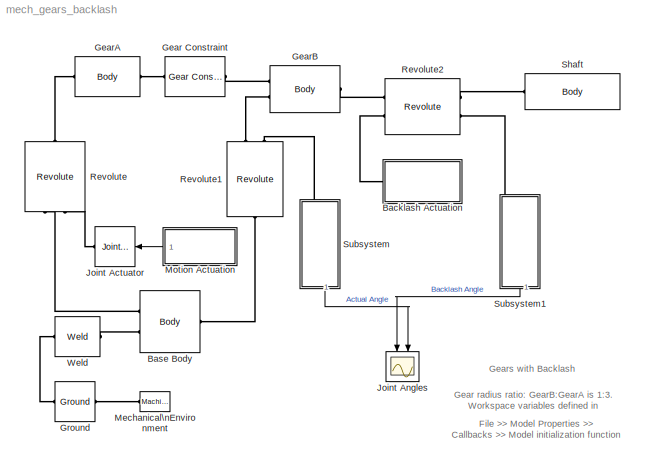
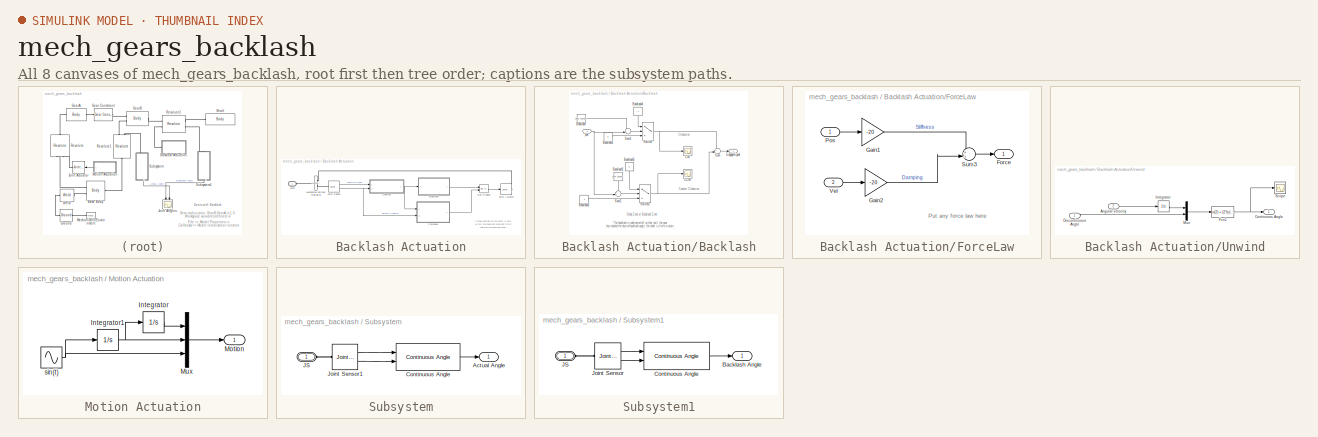
[diagram: thumbnail index - all 8 canvases of the model, root first then tree order]
MODEL mech_gears_backlash
KIND model
CONFIG InitFcn = gear.backlashCW=0.2;\ngear.backlashCCW=0.2;
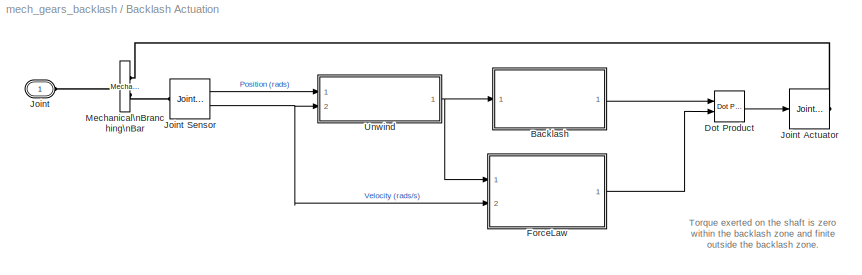
BLOCK [SubSystem] Backlash Actuation
  FunctionWithSeparateData = off
  MaskHideContents = off
  MinAlgLoopOccurrences = off
  Opaque = off
  Ports = [0, 0, 0, 0, 0, 1]
  PropExecContextOutsideSubsystem = off
  RTWSystemCode = Auto
  RequestExecContextInheritance = off
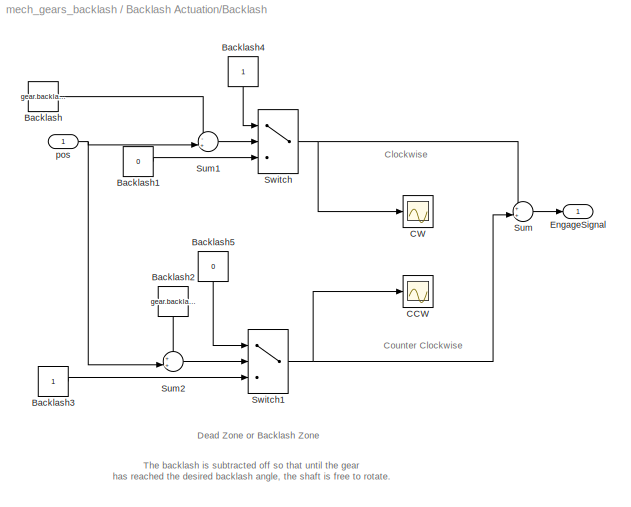
BLOCK [SubSystem] Backlash Actuation/Backlash
  FunctionWithSeparateData = off
  MaskHideContents = off
  MinAlgLoopOccurrences = off
  Opaque = off
  Ports = [1, 1]
  PropExecContextOutsideSubsystem = off
  RTWSystemCode = Auto
  RequestExecContextInheritance = off
BLOCK [Constant] Backlash Actuation/Backlash/Backlash
  OutDataType = sfix(16)
  OutScaling = 2^0
  Value = gear.backlashCW
BLOCK [Constant] Backlash Actuation/Backlash/Backlash1
  OutDataType = sfix(16)
  OutScaling = 2^0
  Value = 0
BLOCK [Constant] Backlash Actuation/Backlash/Backlash2
  OutDataType = sfix(16)
  OutScaling = 2^0
  Value = gear.backlashCCW
BLOCK [Constant] Backlash Actuation/Backlash/Backlash3
  OutDataType = sfix(16)
  OutScaling = 2^0
BLOCK [Constant] Backlash Actuation/Backlash/Backlash4
  OutDataType = sfix(16)
  OutScaling = 2^0
BLOCK [Constant] Backlash Actuation/Backlash/Backlash5
  OutDataType = sfix(16)
  OutScaling = 2^0
  Value = 0
BLOCK [Scope] Backlash Actuation/Backlash/CCW
  DataFormat = StructureWithTime
  Floating = off
  NumInputPorts = 1
  Ports = [1]
  SampleTime = 0
  SaveName = ScopeData4
  TimeRange = 5
  YMax = 2.5
  YMin = -4
BLOCK [Scope] Backlash Actuation/Backlash/CW
  DataFormat = StructureWithTime
  Floating = off
  NumInputPorts = 1
  Ports = [1]
  SampleTime = 0
  SaveName = ScopeData1
  TimeRange = 5
  YMax = 1
  YMin = 0
BLOCK [Outport] Backlash Actuation/Backlash/EngageSignal
  IconDisplay = Port number
  OutDataType = sfix(16)
  OutScaling = 2^0
BLOCK [Sum] Backlash Actuation/Backlash/Sum
  IconShape = round
  InputSameDT = off
  Inputs = ++|
  OutDataType = sfix(16)
  OutDataTypeMode = Inherit via internal rule
  OutDataTypeStr = Inherit: Inherit via internal rule
  OutScaling = 2^0
  Ports = [2, 1]
BLOCK [Sum] Backlash Actuation/Backlash/Sum1
  IconShape = round
  InputSameDT = off
  Inputs = -+|
  OutDataType = sfix(16)
  OutDataTypeMode = Inherit via internal rule
  OutDataTypeStr = Inherit: Inherit via internal rule
  OutScaling = 2^0
  Ports = [2, 1]
BLOCK [Sum] Backlash Actuation/Backlash/Sum2
  IconShape = round
  InputSameDT = off
  Inputs = ++|
  OutDataType = sfix(16)
  OutDataTypeMode = Inherit via internal rule
  OutDataTypeStr = Inherit: Inherit via internal rule
  OutScaling = 2^0
  Ports = [2, 1]
BLOCK [Switch] Backlash Actuation/Backlash/Switch
  Criteria = u2 > Threshold
  InputSameDT = off
  SaturateOnIntegerOverflow = off
BLOCK [Switch] Backlash Actuation/Backlash/Switch1
  Criteria = u2 > Threshold
  InputSameDT = off
  SaturateOnIntegerOverflow = off
BLOCK [Inport] Backlash Actuation/Backlash/pos
  IconDisplay = Port number
  OutDataType = sfix(16)
  OutScaling = 2^0
BLOCK [Reference] Backlash Actuation/Dot Product  REF=simulink/Math\nOperations/Dot Product
  DoSatur = off
  InputSameDT = on
  LockScale = off
  OutDataType = sfix(16)
  OutDataTypeStr = Inherit: Inherit via internal rule
  OutScaling = 2^-10
  OutputDataTypeScalingMode = Inherit via internal rule
  Ports = [2, 1]
  RndMeth = Floor
  SourceBlock = simulink/Math\nOperations/Dot Product
  SourceType = Dot Product
BLOCK [SubSystem] Backlash Actuation/ForceLaw
  FunctionWithSeparateData = off
  MaskHideContents = off
  MinAlgLoopOccurrences = off
  Opaque = off
  Ports = [2, 1]
  PropExecContextOutsideSubsystem = off
  RTWSystemCode = Auto
  RequestExecContextInheritance = off
BLOCK [Outport] Backlash Actuation/ForceLaw/Force
  IconDisplay = Port number
  OutDataType = sfix(16)
  OutScaling = 2^0
BLOCK [Gain] Backlash Actuation/ForceLaw/Gain1
  Gain = -20
  Multiplication = Matrix(K*u)
  OutDataType = sfix(16)
  OutScaling = 2^0
  ParameterDataType = sfix(16)
  ParameterScaling = 2^0
BLOCK [Gain] Backlash Actuation/ForceLaw/Gain2
  Gain = -20
  Multiplication = Matrix(K*u)
  OutDataType = sfix(16)
  OutScaling = 2^0
  ParameterDataType = sfix(16)
  ParameterScaling = 2^0
BLOCK [Inport] Backlash Actuation/ForceLaw/Pos
  IconDisplay = Port number
  OutDataType = sfix(16)
  OutScaling = 2^0
BLOCK [Sum] Backlash Actuation/ForceLaw/Sum3
  IconShape = round
  InputSameDT = off
  Inputs = ++|
  OutDataType = sfix(16)
  OutDataTypeMode = Inherit via internal rule
  OutDataTypeStr = Inherit: Inherit via internal rule
  OutScaling = 2^0
  Ports = [2, 1]
BLOCK [Inport] Backlash Actuation/ForceLaw/Vel
  IconDisplay = Port number
  OutDataType = sfix(16)
  OutScaling = 2^0
  Port = 2
BLOCK [PMIOPort] Backlash Actuation/Joint
  Port = 1
  Side = Left
  Tag = PMCPort
BLOCK [Reference] Backlash Actuation/Joint Actuator  REF=mblibv1/Sensors & \nActuators/Joint Actuator
  AccelerationUnits = m/s^2
  ActiveIO = on
  ActuationStyle = Force
  AngleUnits = deg
  ArcAccelerationUnits = deg/s^2
  ArcVelocityUnits = deg/s
  ClassName = JointActuator
  CoordPositionUnits = m
  DialogClass = MechanicalActuatorBlock
  DialogController = MECH.DynMechDlgSource
  ForceUnits = N
  FunctionWithSeparateData = off
  PhysicalDomain = Mechanical
  PortType = blob
  Ports = [1, 0, 0, 0, 0, 0, 1]
  Primitive = R1
  RTWMemSecDataConstants = Inherit from model
  RTWMemSecDataInternal = Inherit from model
  RTWMemSecDataParameters = Inherit from model
  RTWMemSecFuncExecute = Inherit from model
  RTWMemSecFuncInitTerm = Inherit from model
  ReferenceFrame = Absolute (INERTIAL)
  ShowPortLabels = FromPortIcon
  SourceBlock = mblibv1/Sensors & \nActuators/Joint Actuator
  SourceType = Joint Actuator
  SystemSampleTime = -1
  TorqueUnits = N-m
  VelocityUnits = m/s
  Width = 1
BLOCK [Reference] Backlash Actuation/Joint Sensor  REF=mblibv1/Sensors & \nActuators/Joint Sensor
  Acceleration = off
  AccelerationUnits = m/s^2
  ActiveIO = on
  Angle = on
  AngleUnits = rad
  ArcAcceleration = off
  ArcAccelerationUnits = deg/s^2
  ArcVelocity = on
  ArcVelocityUnits = rad/s
  ClassName = JointSensor
  CoordPosition = off
  CoordPositionUnits = m
  DialogClass = MechanicalSensorBlock
  DialogController = MECH.DynMechDlgSource
  Force = off
  ForceUnits = N
  FunctionWithSeparateData = off
  Muxed = off
  OutputVector = [ 1 1 ]
  PhysicalDomain = Mechanical
  PortType = blob
  Ports = [0, 2, 0, 0, 0, 1]
  Pose = off
  Primitive = R1
  Quaternion = off
  QuaternionDDT = off
  QuaternionDT = off
  QuaternionUnits = off
  RTWMemSecDataConstants = Inherit from model
  RTWMemSecDataInternal = Inherit from model
  RTWMemSecDataParameters = Inherit from model
  RTWMemSecFuncExecute = Inherit from model
  RTWMemSecFuncInitTerm = Inherit from model
  ReactionForce = off
  ReactionForceUnits = N
  ReactionMoment = off
  ReactionMomentUnits = N-m
  ReactionReferenceFrame = Absolute (World)
  ReactionSensedSide = Base
  ReferenceFrame = Absolute (INERTIAL)
  ShowPortLabels = FromPortIcon
  SourceBlock = mblibv1/Sensors & \nActuators/Joint Sensor
  SourceType = Joint Sensor
  SystemSampleTime = -1
  Torque = off
  TorqueUnits = N-m
  Velocity = off
  VelocityUnits = m/s
  Width = 2
BLOCK [Reference] Backlash Actuation/Mechanical\nBranching\nBar  REF=mblibv1/Utilities/Mechanical\nBranching\nBar
  ClassName = BranchingBar
  DialogClass = MechanicalBranchingBarBlock
  DialogController = MECH.DynMechDlgSource
  LConnTagsString = _newl0
  LeftPortType = blob
  NumSAPorts = 2
  PhysicalDomain = mechanical
  Ports = [0, 0, 0, 0, 0, 1, 2]
  RConnTagsString = SA0|SA1
  RightPortType = blob
  SourceBlock = mblibv1/Utilities/Mechanical\nBranching\nBar
  SourceType = Mechanical Branching Bar
  SubClassName = Unknown
BLOCK [SubSystem] Backlash Actuation/Unwind
  FunctionWithSeparateData = off
  MaskHideContents = off
  MinAlgLoopOccurrences = off
  Opaque = off
  Ports = [2, 1]
  PropExecContextOutsideSubsystem = off
  RTWSystemCode = Auto
  RequestExecContextInheritance = off
BLOCK [Inport] Backlash Actuation/Unwind/Angular velocity
  IconDisplay = Port number
  OutDataType = sfix(16)
  OutScaling = 2^0
  Port = 2
BLOCK [Outport] Backlash Actuation/Unwind/Continuous Angle
  IconDisplay = Port number
  OutDataType = sfix(16)
  OutScaling = 2^0
BLOCK [Inport] Backlash Actuation/Unwind/Discontinuous Angle
  IconDisplay = Port number
  OutDataType = sfix(16)
  OutScaling = 2^0
BLOCK [Fcn] Backlash Actuation/Unwind/Fcn1
  Expr = u(2) + (2*(u(1) > u(2)) - 1)*2*pi*floor(abs(u(1)-u(2))/(2*pi) + 0.5)
BLOCK [Integrator] Backlash Actuation/Unwind/Integrator
  AbsoluteTolerance = 1e-3
  Ports = [1, 1]
BLOCK [Mux] Backlash Actuation/Unwind/Mux
  DisplayOption = bar
  Inputs = 2
  Ports = [2, 1]
BLOCK [Scope] Backlash Actuation/Unwind/Scope
  DataFormat = StructureWithTime
  Floating = off
  NumInputPorts = 1
  Ports = [1]
  SampleTime = 0
BLOCK [Reference] Base Body  REF=mblibv1/Bodies/Body
  AttachedToCS = 1
  BodyColor = [0.5 0.5 0.5]
  CG = Left$CG$[1 0 0]$CS1$CS1$m$[0 0 0]$Euler X-Y-Z$deg$WORLD$true
  CGPos = [1 0 0]
  CGRot = [0 0 0]
  CS0Pos = []
  CS0Rot = []
  CS10Pos = []
  CS10Rot = []
  CS11Pos = []
  CS11Rot = []
  CS12Pos = []
  CS12Rot = []
  CS13Pos = []
  CS13Rot = []
  CS14Pos = []
  CS14Rot = []
  CS15Pos = []
  CS15Rot = []
  CS16Pos = []
  CS16Rot = []
  CS17Pos = []
  CS17Rot = []
  CS18Pos = []
  CS18Rot = []
  CS19Pos = []
  CS19Rot = []
  CS1Pos = [0 0 0]
  CS1Rot = [0 0 0]
  CS20Pos = []
  CS20Rot = []
  CS2Pos = [2 0 0]
  CS2Rot = [0 0 0]
  CS3Pos = [1 -2 0]
  CS3Rot = [0 0 0]
  CS4Pos = []
  CS4Rot = []
  CS5Pos = []
  CS5Rot = []
  CS6Pos = []
  CS6Rot = []
  CS7Pos = []
  CS7Rot = []
  CS8Pos = []
  CS8Rot = []
  CS9Pos = []
  CS9Rot = []
  ClassName = Body
  Density = 1
  DensityUnits = kg/m^3
  DensityUse = false
  DialogClass = MechanicalBodyBlock
  DialogController = MECH.DynMechDlgSource
  GraphicsMode = 1
  GraphicsObj = []
  Inertia = [1 0 0;0 3 0;0 0 3];
  InertiaUnits = kg*m^2
  LConnTagsString = CS1|CG
  LeftPortType = workingframe
  Mass = 14
  MassUnits = kg
  PhysicalDomain = mechanical
  Ports = [0, 0, 0, 0, 0, 2, 1]
  RConnTagsString = CS2
  RightPortType = workingframe
  Shape = Cylinder
  ShapeDims = [1 1]
  ShapeUnits = m
  ShapeUse = false
  SourceBlock = mblibv1/Bodies/Body
  SourceType = Body
  SubClassName = Unknown
  WorkingFrames = Left$CS1$[0 0 0]$WORLD$WORLD$m$[0 0 0]$Euler X-Y-Z$deg$WORLD$true#Right$CS2$[2 0 0]$CS1$CS1$m$[0 0 0]$Euler X-Y-Z$deg$WORLD$true#Right$CS3$[1 -2 0]$CS1$CS1$m$[0 0 0]$Euler X-Y-Z$deg$WORLD$false
BLOCK [Reference] Gear Constraint  REF=mblibv1/Constraints & \nDrivers/Gear Constraint
  BaseRadius = 1.5
  BaseRadiusUnits = m
  ClassName = GearConstraint
  DialogClass = GearConstraint
  DialogController = MECH.DynMechDlgSource
  FollowerRadius = 0.5
  FollowerRadiusUnits = m
  LConnTagsString = __newl0
  LeftPortType = blob
  NumSAPorts = 0
  PhysicalDomain = mechanical
  Ports = [0, 0, 0, 0, 0, 1, 1]
  RConnTagsString = __newr0
  RightPortType = blob
  SourceBlock = mblibv1/Constraints & \nDrivers/Gear Constraint
  SourceType = Gear Constraint
  SubClassName = Unknown
BLOCK [Reference] GearA  REF=mblibv1/Bodies/Body
  AttachedToCS = 1
  BodyColor = [0.5 0.5 0.5]
  CG = Left$CG$[0 0 0]$CS1$CS1$m$[0 0 0]$Euler X-Y-Z$deg$WORLD$false
  CGPos = [0 0 0]
  CGRot = [0 0 0]
  CS0Pos = []
  CS0Rot = []
  CS10Pos = [0 0 -0.5]
  CS10Rot = [0 0 0]
  CS11Pos = []
  CS11Rot = []
  CS12Pos = []
  CS12Rot = []
  CS13Pos = []
  CS13Rot = []
  CS14Pos = []
  CS14Rot = []
  CS15Pos = []
  CS15Rot = []
  CS16Pos = []
  CS16Rot = []
  CS17Pos = []
  CS17Rot = []
  CS18Pos = []
  CS18Rot = []
  CS19Pos = []
  CS19Rot = []
  CS1Pos = [0 0 0]
  CS1Rot = [0 0 0]
  CS20Pos = []
  CS20Rot = []
  CS2Pos = [0 0 0]
  CS2Rot = [0 0 0]
  CS3Pos = [-1 0 0]
  CS3Rot = [0 0 0]
  CS4Pos = [0 1 0]
  CS4Rot = [0 0 0]
  CS5Pos = [1 0 0]
  CS5Rot = [0 0 0]
  CS6Pos = [0 -1 0]
  CS6Rot = [0 0 0]
  CS7Pos = [0 0 -0.5]
  CS7Rot = [0 0 0]
  CS8Pos = [0 0 -0.5]
  CS8Rot = [0 0 0]
  CS9Pos = [0 0 -0.5]
  CS9Rot = [0 0 0]
  ClassName = Body
  Density = 1
  DensityUnits = kg/m^3
  DensityUse = false
  DialogClass = MechanicalBodyBlock
  DialogController = MECH.DynMechDlgSource
  GraphicsMode = 1
  GraphicsObj = []
  Inertia = [0.5 0 0;0 0.5 0;0 0 1]
  InertiaUnits = kg*m^2
  LConnTagsString = CS1
  LeftPortType = workingframe
  Mass = 2
  MassUnits = kg
  PhysicalDomain = mechanical
  Ports = [0, 0, 0, 0, 0, 1, 1]
  RConnTagsString = CS2
  RightPortType = workingframe
  Shape = Cylinder
  ShapeDims = [1 1]
  ShapeUnits = m
  ShapeUse = false
  SourceBlock = mblibv1/Bodies/Body
  SourceType = Body
  SubClassName = Unknown
  WorkingFrames = Left$CS1$[0 0 0]$ADJOINING$ADJOINING$m$[0 0 0]$Euler X-Y-Z$deg$WORLD$true#Right$CS2$[0 0 0]$CS1$CS1$m$[0 0 0]$Euler X-Y-Z$deg$WORLD$true#Right$CS3$[-1 0 0]$CG$CG$m$[0 0 0]$Euler X-Y-Z$deg$WORLD$false#Right$CS4$[0 1 0]$CG$CG$m$[0 0 0]$Euler X-Y-Z$deg$WORLD$false#Right$CS5$[1 0 0]$CG$CG$m$[0 0 0]$Euler X-Y-Z$deg$WORLD$false#Right$CS6$[0 -1 0]$CG$CG$m$[0 0 0]$Euler X-Y-Z$deg$WORLD$false#Right$CS7$[0 ...<+255ch>
BLOCK [Reference] GearB  REF=mblibv1/Bodies/Body
  AttachedToCS = 1
  BodyColor = [0.5 0.5 0.5]
  CG = Left$CG$[0 0 0]$CS1$CS1$m$[0 0 0]$Euler X-Y-Z$deg$WORLD$false
  CGPos = [0 0 0]
  CGRot = [0 0 0]
  CS0Pos = []
  CS0Rot = []
  CS10Pos = [0 0 -0.5]
  CS10Rot = [0 0 0]
  CS11Pos = [0 0 -0.5]
  CS11Rot = [0 0 0]
  CS12Pos = []
  CS12Rot = []
  CS13Pos = []
  CS13Rot = []
  CS14Pos = []
  CS14Rot = []
  CS15Pos = []
  CS15Rot = []
  CS16Pos = []
  CS16Rot = []
  CS17Pos = []
  CS17Rot = []
  CS18Pos = []
  CS18Rot = []
  CS19Pos = []
  CS19Rot = []
  CS1Pos = [2 0 0]
  CS1Rot = [0 0 0]
  CS20Pos = []
  CS20Rot = []
  CS2Pos = [0 0 0]
  CS2Rot = [0 0 0]
  CS3Pos = [0 0 0]
  CS3Rot = [0 0 0]
  CS4Pos = [1 0 0]
  CS4Rot = [0 0 0]
  CS5Pos = [0 1 0]
  CS5Rot = [0 0 0]
  CS6Pos = [-1 0 0]
  CS6Rot = [0 0 0]
  CS7Pos = [0 -1 0]
  CS7Rot = [0 0 0]
  CS8Pos = [0 0 -0.5]
  CS8Rot = [0 0 0]
  CS9Pos = [0 0 -0.5]
  CS9Rot = [0 0 0]
  ClassName = Body
  Density = 1
  DensityUnits = kg/m^3
  DensityUse = false
  DialogClass = MechanicalBodyBlock
  DialogController = MECH.DynMechDlgSource
  GraphicsMode = 1
  GraphicsObj = []
  Inertia = [0.5 0 0;0 0.5 0;0 0 1]
  InertiaUnits = kg*m^2
  LConnTagsString = CS1|CS2
  LeftPortType = workingframe
  Mass = 4
  MassUnits = kg
  PhysicalDomain = mechanical
  Ports = [0, 0, 0, 0, 0, 2, 1]
  RConnTagsString = CS3
  RightPortType = workingframe
  Shape = Cylinder
  ShapeDims = [1 1]
  ShapeUnits = m
  ShapeUse = false
  SourceBlock = mblibv1/Bodies/Body
  SourceType = Body
  SubClassName = Unknown
  WorkingFrames = Left$CS1$[2 0 0]$ADJOINING$ADJOINING$m$[0 0 0]$Euler X-Y-Z$deg$WORLD$true#Left$CS2$[0 0 0]$CS1$CS1$m$[0 0 0]$Euler X-Y-Z$deg$WORLD$true#Right$CS3$[0 0 0]$CS1$CS1$m$[0 0 0]$Euler X-Y-Z$deg$WORLD$true#Right$CS4$[1 0 0]$CG$CG$m$[0 0 0]$Euler X-Y-Z$deg$WORLD$false#Right$CS5$[0 1 0]$CG$CG$m$[0 0 0]$Euler X-Y-Z$deg$WORLD$false#Right$CS6$[-1 0 0]$CG$CG$m$[0 0 0]$Euler X-Y-Z$deg$WORLD$false#Right$CS7$[0 -...<+318ch>
BLOCK [Reference] Ground  REF=mblibv1/Bodies/Ground
  ClassName = Ground
  CoordPosition = [1 0 0]
  CoordPositionUnits = m
  DialogClass = GroundBlock
  DialogController = MECH.DynMechDlgSource
  FunctionWithSeparateData = off
  LeftPortType = env
  MachineId = [0 0]
  PhysicalDomain = Mechanical
  Ports = [0, 0, 0, 0, 0, 1, 1]
  RTWMemSecDataConstants = Inherit from model
  RTWMemSecDataInternal = Inherit from model
  RTWMemSecDataParameters = Inherit from model
  RTWMemSecFuncExecute = Inherit from model
  RTWMemSecFuncInitTerm = Inherit from model
  RightPortType = workingframe
  ShowEnvPort = on
  ShowPortLabels = FromPortIcon
  SourceBlock = mblibv1/Bodies/Ground
  SourceType = Ground
  StateVectorMgrId = -1
  SystemSampleTime = -1
  UserData = DataTag0
  UserDataPersistent = on
BLOCK [Reference] Joint Actuator  REF=mblibv1/Sensors & \nActuators/Joint Actuator
  AccelerationUnits = m/s^2
  ActiveIO = on
  ActuationStyle = Motion
  AngleUnits = rad
  ArcAccelerationUnits = rad/s^2
  ArcVelocityUnits = rad/s
  ClassName = JointActuator
  CoordPositionUnits = m
  DialogClass = MechanicalActuatorBlock
  DialogController = MECH.DynMechDlgSource
  ForceUnits = N
  FunctionWithSeparateData = off
  PhysicalDomain = Mechanical
  PortType = blob
  Ports = [1, 0, 0, 0, 0, 0, 1]
  Primitive = R1
  RTWMemSecDataConstants = Inherit from model
  RTWMemSecDataInternal = Inherit from model
  RTWMemSecDataParameters = Inherit from model
  RTWMemSecFuncExecute = Inherit from model
  RTWMemSecFuncInitTerm = Inherit from model
  ReferenceFrame = Absolute (INERTIAL)
  ShowPortLabels = FromPortIcon
  SourceBlock = mblibv1/Sensors & \nActuators/Joint Actuator
  SourceType = Joint Actuator
  SystemSampleTime = -1
  TorqueUnits = N-m
  VelocityUnits = m/s
  Width = 3
BLOCK [Scope] Joint Angles
  DataFormat = StructureWithTime
  Floating = off
  NumInputPorts = 2
  Ports = [2]
  SampleTime = 0
  SaveName = ScopeData2
  TimeRange = 20
  YMax = 0.25~16
  YMin = -0.25~-2
BLOCK [Reference] Mechanical\nEnvironment  REF=mblibv1/Bodies/Machine\nEnvironment
  AnalysisType = Forward dynamics
  AngularAssemblyTolerance = 1e-3
  AngularAssemblyToleranceUnits = rad
  ClassName = Environment
  ConstraintAbsTolerance = 1e-4
  ConstraintRelTolerance = 1e-4
  ConstraintSolverType = Stabilizing
  DialogController = MECH.DialogSource
  DialogTemplateClass = MECH.MachineEnvironment
  Dimensionality = 3D Only
  FunctionWithSeparateData = off
  Gravity = [0 -9.81 0]
  GravityAsSignal = off
  GravityUnits = m/s^2
  LinearAssemblyTolerance = 1e-3
  LinearAssemblyToleranceUnits = m
  PerturbationSize = 1e-5
  PhysicalDomain = Mechanical
  PortType = env
  Ports = [0, 0, 0, 0, 0, 0, 1]
  RTWMemSecDataConstants = Inherit from model
  RTWMemSecDataInternal = Inherit from model
  RTWMemSecDataParameters = Inherit from model
  RTWMemSecFuncExecute = Inherit from model
  RTWMemSecFuncInitTerm = Inherit from model
  RedundancyAnalysisTolerance = 1e-14
  RedundancyAnalysisToleranceType = Automatically select tolerance
  ShowPortLabels = FromPortIcon
  SourceBlock = mblibv1/Bodies/Machine\nEnvironment
  SourceType = Machine Environment
  StatePerturbationType = Fixed
  SyncWhenCopied = off
  SystemSampleTime = -1
  Tag = Factory ground
  UseRobustSingularityHandling = off
  VisualizeMachine = on
BLOCK [SubSystem] Motion Actuation
  FunctionWithSeparateData = off
  MaskHideContents = off
  MinAlgLoopOccurrences = off
  Opaque = off
  Ports = [0, 1]
  PropExecContextOutsideSubsystem = off
  RTWSystemCode = Auto
  RequestExecContextInheritance = off
BLOCK [Integrator] Motion Actuation/Integrator
  Ports = [1, 1]
BLOCK [Integrator] Motion Actuation/Integrator1
  InitialCondition = -0.25
  Ports = [1, 1]
BLOCK [Outport] Motion Actuation/Motion
  IconDisplay = Port number
  OutDataType = sfix(16)
  OutScaling = 2^0
BLOCK [Mux] Motion Actuation/Mux
  DisplayOption = bar
  Inputs = 3
  Ports = [3, 1]
BLOCK [Sin] Motion Actuation/sin(t)
  Amplitude = 0.5
  Ports = [0, 1]
  SampleTime = 0
BLOCK [Reference] Revolute  REF=mblibv1/Joints/Revolute
  ClassName = Joint
  CutJoint = off
  DialogClass = JointBlock
  DialogController = MECH.DynMechDlgSource
  LConnTagsString = __newl0|SA1
  LeftPortType = blob
  MarkAsCut = off
  NumSAPorts = 1
  PhysicalDomain = mechanical
  Ports = [0, 0, 0, 0, 0, 2, 1]
  PrimitiveProps = R1$WORLD$[0 0 1]$revolute
  Primitives = revolute
  R1Axis = [0 0 1]
  RConnTagsString = __newr0
  RightPortType = blob
  SourceBlock = mblibv1/Joints/Revolute
  SourceType = Revolute
  SubClassName = Unknown
BLOCK [Reference] Revolute1  REF=mblibv1/Joints/Revolute
  ClassName = Joint
  CutJoint = off
  DialogClass = JointBlock
  DialogController = MECH.DynMechDlgSource
  LConnTagsString = __newl0|SA1
  LeftPortType = blob
  MarkAsCut = off
  NumSAPorts = 1
  PhysicalDomain = mechanical
  Ports = [0, 0, 0, 0, 0, 2, 1]
  PrimitiveProps = R1$WORLD$[0 0 1]$revolute
  Primitives = revolute
  R1Axis = [0 0 1]
  RConnTagsString = __newr0
  RightPortType = blob
  SourceBlock = mblibv1/Joints/Revolute
  SourceType = Revolute
  SubClassName = Unknown
BLOCK [Reference] Revolute2  REF=mblibv1/Joints/Revolute
  ClassName = Joint
  CutJoint = off
  DialogClass = JointBlock
  DialogController = MECH.DynMechDlgSource
  LConnTagsString = __newl0|SA1
  LeftPortType = blob
  MarkAsCut = off
  NumSAPorts = 2
  PhysicalDomain = mechanical
  Ports = [0, 0, 0, 0, 0, 2, 2]
  PrimitiveProps = R1$WORLD$[0 0 1]$revolute
  Primitives = revolute
  R1Axis = [0 0 1]
  RConnTagsString = __newr0|SA1
  RightPortType = blob
  SourceBlock = mblibv1/Joints/Revolute
  SourceType = Revolute
  SubClassName = Unknown
BLOCK [Reference] Shaft  REF=mblibv1/Bodies/Body
  AttachedToCS = 1
  BodyColor = [0.5 0.5 0.5]
  CG = Left$CG$[0 0 1.5]$CS1$CS1$m$[0 0 0]$Euler X-Y-Z$deg$WORLD$false
  CGPos = [0 0 1.5]
  CGRot = [0 0 0]
  CS0Pos = []
  CS0Rot = []
  CS10Pos = []
  CS10Rot = []
  CS11Pos = []
  CS11Rot = []
  CS12Pos = []
  CS12Rot = []
  CS13Pos = []
  CS13Rot = []
  CS14Pos = []
  CS14Rot = []
  CS15Pos = []
  CS15Rot = []
  CS16Pos = []
  CS16Rot = []
  CS17Pos = []
  CS17Rot = []
  CS18Pos = []
  CS18Rot = []
  CS19Pos = []
  CS19Rot = []
  CS1Pos = [0 0 0]
  CS1Rot = [0 0 0]
  CS20Pos = []
  CS20Rot = []
  CS2Pos = [0 1.5 0]
  CS2Rot = [0 0 0]
  CS3Pos = [0 -1.5 0]
  CS3Rot = [0 0 0]
  CS4Pos = [0 0 1]
  CS4Rot = [0 0 0]
  CS5Pos = [0 0 1]
  CS5Rot = [0 0 0]
  CS6Pos = []
  CS6Rot = []
  CS7Pos = []
  CS7Rot = []
  CS8Pos = []
  CS8Rot = []
  CS9Pos = []
  CS9Rot = []
  ClassName = Body
  Density = 1
  DensityUnits = kg/m^3
  DensityUse = false
  DialogClass = MechanicalBodyBlock
  DialogController = MECH.DynMechDlgSource
  GraphicsMode = 1
  GraphicsObj = []
  Inertia = [3 0 0;0 3 0;0 0 0.2];
  InertiaUnits = kg*m^2
  LConnTagsString = CS1
  LeftPortType = workingframe
  Mass = 10
  MassUnits = kg
  PhysicalDomain = mechanical
  Ports = [0, 0, 0, 0, 0, 1]
  RightPortType = workingframe
  Shape = Cylinder
  ShapeDims = [1 1]
  ShapeUnits = m
  ShapeUse = false
  SourceBlock = mblibv1/Bodies/Body
  SourceType = Body
  SubClassName = Unknown
  WorkingFrames = Left$CS1$[0 0 0]$ADJOINING$ADJOINING$m$[0 0 0]$Euler X-Y-Z$deg$WORLD$true#Right$CS2$[0 1.5 0]$CG$CG$m$[0 0 0]$Euler X-Y-Z$deg$WORLD$false#Right$CS3$[0 -1.5 0]$CG$CG$m$[0 0 0]$Euler X-Y-Z$deg$WORLD$false#Right$CS4$[0 0 1]$CS2$CS2$m$[0 0 0]$Euler X-Y-Z$deg$WORLD$false#Right$CS5$[0 0 1]$CS3$CS3$m$[0 0 0]$Euler X-Y-Z$deg$WORLD$false
BLOCK [SubSystem] Subsystem
  FunctionWithSeparateData = off
  MaskHideContents = off
  MinAlgLoopOccurrences = off
  Opaque = off
  Ports = [0, 1, 0, 0, 0, 1]
  PropExecContextOutsideSubsystem = off
  RTWSystemCode = Auto
  RequestExecContextInheritance = off
BLOCK [Outport] Subsystem/Actual Angle
  IconDisplay = Port number
  OutDataType = sfix(16)
  OutScaling = 2^0
BLOCK [Reference] Subsystem/Continuous Angle  REF=mblibv1/Utilities/Continuous Angle
  FunctionWithSeparateData = off
  Ports = [2, 1]
  RTWMemSecDataConstants = Inherit from model
  RTWMemSecDataInternal = Inherit from model
  RTWMemSecDataParameters = Inherit from model
  RTWMemSecFuncExecute = Inherit from model
  RTWMemSecFuncInitTerm = Inherit from model
  ShowPortLabels = FromPortIcon
  SourceBlock = mblibv1/Utilities/Continuous Angle
  SourceType = Continuous Angle
  SystemSampleTime = -1
  Tag = Factory continuousAngle
  rad = rad
  rads = rad/s
BLOCK [PMIOPort] Subsystem/JS
  Port = 1
  Side = Left
BLOCK [Reference] Subsystem/Joint Sensor1  REF=mblibv1/Sensors & \nActuators/Joint Sensor
  Acceleration = off
  AccelerationUnits = m/s^2
  ActiveIO = on
  Angle = on
  AngleUnits = rad
  ArcAcceleration = off
  ArcAccelerationUnits = deg/s^2
  ArcVelocity = on
  ArcVelocityUnits = rad/s
  ClassName = JointSensor
  CoordPosition = on
  CoordPositionUnits = m
  DialogClass = MechanicalSensorBlock
  DialogController = MECH.DynMechDlgSource
  Force = off
  ForceUnits = N
  FunctionWithSeparateData = off
  Muxed = off
  OutputVector = [ 1 1 ]
  PhysicalDomain = Mechanical
  PortType = blob
  Ports = [0, 2, 0, 0, 0, 1]
  Pose = off
  Primitive = R1
  Quaternion = on
  QuaternionDDT = off
  QuaternionDT = off
  QuaternionUnits = off
  RTWMemSecDataConstants = Inherit from model
  RTWMemSecDataInternal = Inherit from model
  RTWMemSecDataParameters = Inherit from model
  RTWMemSecFuncExecute = Inherit from model
  RTWMemSecFuncInitTerm = Inherit from model
  ReactionForce = off
  ReactionForceUnits = N
  ReactionMoment = off
  ReactionMomentUnits = N-m
  ReactionReferenceFrame = Absolute (World)
  ReactionSensedSide = Base
  ReferenceFrame = Absolute (INERTIAL)
  ShowPortLabels = FromPortIcon
  SourceBlock = mblibv1/Sensors & \nActuators/Joint Sensor
  SourceType = Joint Sensor
  SystemSampleTime = -1
  Torque = off
  TorqueUnits = N-m
  Velocity = off
  VelocityUnits = m/s
  Width = 2
BLOCK [SubSystem] Subsystem1
  FunctionWithSeparateData = off
  MaskHideContents = off
  MinAlgLoopOccurrences = off
  Opaque = off
  Ports = [0, 1, 0, 0, 0, 1]
  PropExecContextOutsideSubsystem = off
  RTWSystemCode = Auto
  RequestExecContextInheritance = off
BLOCK [Outport] Subsystem1/Backlash Angle
  IconDisplay = Port number
  OutDataType = sfix(16)
  OutScaling = 2^0
BLOCK [Reference] Subsystem1/Continuous Angle  REF=mblibv1/Utilities/Continuous Angle
  FunctionWithSeparateData = off
  Ports = [2, 1]
  RTWMemSecDataConstants = Inherit from model
  RTWMemSecDataInternal = Inherit from model
  RTWMemSecDataParameters = Inherit from model
  RTWMemSecFuncExecute = Inherit from model
  RTWMemSecFuncInitTerm = Inherit from model
  ShowPortLabels = FromPortIcon
  SourceBlock = mblibv1/Utilities/Continuous Angle
  SourceType = Continuous Angle
  SystemSampleTime = -1
  Tag = Factory continuousAngle
  rad = rad
  rads = rad/s
BLOCK [PMIOPort] Subsystem1/JS
  Port = 1
  Side = Left
BLOCK [Reference] Subsystem1/Joint Sensor  REF=mblibv1/Sensors & \nActuators/Joint Sensor
  Acceleration = off
  AccelerationUnits = m/s^2
  ActiveIO = on
  Angle = on
  AngleUnits = rad
  ArcAcceleration = off
  ArcAccelerationUnits = deg/s^2
  ArcVelocity = on
  ArcVelocityUnits = rad/s
  ClassName = JointSensor
  CoordPosition = on
  CoordPositionUnits = m
  DialogClass = MechanicalSensorBlock
  DialogController = MECH.DynMechDlgSource
  Force = off
  ForceUnits = N
  FunctionWithSeparateData = off
  Muxed = off
  OutputVector = [ 1 1 ]
  PhysicalDomain = Mechanical
  PortType = blob
  Ports = [0, 2, 0, 0, 0, 1]
  Pose = off
  Primitive = R1
  Quaternion = on
  QuaternionDDT = off
  QuaternionDT = off
  QuaternionUnits = off
  RTWMemSecDataConstants = Inherit from model
  RTWMemSecDataInternal = Inherit from model
  RTWMemSecDataParameters = Inherit from model
  RTWMemSecFuncExecute = Inherit from model
  RTWMemSecFuncInitTerm = Inherit from model
  ReactionForce = off
  ReactionForceUnits = N
  ReactionMoment = off
  ReactionMomentUnits = N-m
  ReactionReferenceFrame = Absolute (World)
  ReactionSensedSide = Base
  ReferenceFrame = Absolute (INERTIAL)
  ShowPortLabels = FromPortIcon
  SourceBlock = mblibv1/Sensors & \nActuators/Joint Sensor
  SourceType = Joint Sensor
  SystemSampleTime = -1
  Torque = off
  TorqueUnits = N-m
  Velocity = off
  VelocityUnits = m/s
  Width = 2
BLOCK [Reference] Weld  REF=mblibv1/Joints/Weld
  ClassName = Joint
  CutJoint = off
  DialogClass = JointBlock
  DialogController = MECH.DynMechDlgSource
  LConnTagsString = __newl0
  LeftPortType = blob
  MarkAsCut = off
  NumSAPorts = 0
  PhysicalDomain = mechanical
  Ports = [0, 0, 0, 0, 0, 1, 1]
  PrimitiveProps = W$INERTIAL$[0 0 0]$weld
  Primitives = weld
  RConnTagsString = __newr0
  RightPortType = blob
  SourceBlock = mblibv1/Joints/Weld
  SourceType = Weld
  SubClassName = Unknown
  WAxis = [0 0 0]
ANNOTATION (root): File >> Model Properties >>\nCallbacks >> Model initialization function
ANNOTATION (root): Gear radius ratio: GearB:GearA is 1:3.\nWorkspace variables defined in
ANNOTATION (root): Gears with Backlash
ANNOTATION Backlash Actuation: Torque exerted on the shaft is zero\nwithin the backlash zone and finite\noutside the backlash zone.
ANNOTATION Backlash Actuation/Backlash: Clockwise
ANNOTATION Backlash Actuation/Backlash: Counter Clockwise
ANNOTATION Backlash Actuation/Backlash: Dead Zone or Backlash Zone
ANNOTATION Backlash Actuation/Backlash: The backlash is subtracted off so that until the gear \nhas reached the desired backlash angle, the shaft is free to rotate.
ANNOTATION Backlash Actuation/ForceLaw: Put any force law here
LINE Backlash Actuation/Backlash/Backlash1:1 -> Backlash Actuation/Backlash/Switch:3
LINE Backlash Actuation/Backlash/Backlash2:1 -> Backlash Actuation/Backlash/Sum2:1
LINE Backlash Actuation/Backlash/Backlash3:1 -> Backlash Actuation/Backlash/Switch1:3
LINE Backlash Actuation/Backlash/Backlash4:1 -> Backlash Actuation/Backlash/Switch:1
LINE Backlash Actuation/Backlash/Backlash5:1 -> Backlash Actuation/Backlash/Switch1:1
LINE Backlash Actuation/Backlash/Backlash:1 -> Backlash Actuation/Backlash/Sum1:1
LINE Backlash Actuation/Backlash/Sum1:1 -> Backlash Actuation/Backlash/Switch:2
LINE Backlash Actuation/Backlash/Sum2:1 -> Backlash Actuation/Backlash/Switch1:2
LINE Backlash Actuation/Backlash/Sum:1 -> Backlash Actuation/Backlash/EngageSignal:1
NET Backlash Actuation/Backlash/Switch1:1 -> Backlash Actuation/Backlash/CCW:1, Backlash Actuation/Backlash/Sum:2
NET Backlash Actuation/Backlash/Switch:1 -> Backlash Actuation/Backlash/CW:1, Backlash Actuation/Backlash/Sum:1
NET Backlash Actuation/Backlash/pos:1 -> Backlash Actuation/Backlash/Sum1:2, Backlash Actuation/Backlash/Sum2:2
LINE Backlash Actuation/Backlash:1 -> Backlash Actuation/Dot Product:1
LINE Backlash Actuation/Dot Product:1 -> Backlash Actuation/Joint Actuator:1
LINE Backlash Actuation/ForceLaw/Gain1:1 -> Backlash Actuation/ForceLaw/Sum3:1
LINE Backlash Actuation/ForceLaw/Gain2:1 -> Backlash Actuation/ForceLaw/Sum3:2
LINE Backlash Actuation/ForceLaw/Pos:1 -> Backlash Actuation/ForceLaw/Gain1:1
LINE Backlash Actuation/ForceLaw/Sum3:1 -> Backlash Actuation/ForceLaw/Force:1
LINE Backlash Actuation/ForceLaw/Vel:1 -> Backlash Actuation/ForceLaw/Gain2:1
LINE Backlash Actuation/ForceLaw:1 -> Backlash Actuation/Dot Product:2
LINE Backlash Actuation/Joint Sensor:1 -> Backlash Actuation/Unwind:1
NET Backlash Actuation/Joint Sensor:2 -> Backlash Actuation/ForceLaw:2, Backlash Actuation/Unwind:2
LINE Backlash Actuation/Unwind/Angular velocity:1 -> Backlash Actuation/Unwind/Integrator:1
LINE Backlash Actuation/Unwind/Discontinuous Angle:1 -> Backlash Actuation/Unwind/Mux:2
NET Backlash Actuation/Unwind/Fcn1:1 -> Backlash Actuation/Unwind/Continuous Angle:1, Backlash Actuation/Unwind/Scope:1
LINE Backlash Actuation/Unwind/Integrator:1 -> Backlash Actuation/Unwind/Mux:1
LINE Backlash Actuation/Unwind/Mux:1 -> Backlash Actuation/Unwind/Fcn1:1
NET Backlash Actuation/Unwind:1 -> Backlash Actuation/Backlash:1, Backlash Actuation/ForceLaw:1
NET Motion Actuation/Integrator1:1 -> Motion Actuation/Integrator:1, Motion Actuation/Mux:2
LINE Motion Actuation/Integrator:1 -> Motion Actuation/Mux:1
LINE Motion Actuation/Mux:1 -> Motion Actuation/Motion:1
NET Motion Actuation/sin(t):1 -> Motion Actuation/Integrator1:1, Motion Actuation/Mux:3
LINE Motion Actuation:1 -> Joint Actuator:1
LINE Subsystem/Continuous Angle:1 -> Subsystem/Actual Angle:1
LINE Subsystem/Joint Sensor1:1 -> Subsystem/Continuous Angle:1
LINE Subsystem/Joint Sensor1:2 -> Subsystem/Continuous Angle:2
LINE Subsystem1/Continuous Angle:1 -> Subsystem1/Backlash Angle:1
LINE Subsystem1/Joint Sensor:1 -> Subsystem1/Continuous Angle:1
LINE Subsystem1/Joint Sensor:2 -> Subsystem1/Continuous Angle:2
LINE Subsystem1:1 -> Joint Angles:1
LINE Subsystem:1 -> Joint Angles:2
PLINE Backlash Actuation/Joint Actuator:RConn1 -- Backlash Actuation/Mechanical\nBranching\nBar:RConn1
PLINE Backlash Actuation/Joint Sensor:LConn1 -- Backlash Actuation/Mechanical\nBranching\nBar:RConn2
PLINE Backlash Actuation/Joint:RConn1 -- Backlash Actuation/Mechanical\nBranching\nBar:LConn1
PLINE Backlash Actuation:LConn1 -- Revolute2:LConn2
PLINE Base Body:LConn1 -- Revolute:LConn1
PLINE Base Body:LConn2 -- Weld:RConn1
PLINE Base Body:RConn1 -- Revolute1:RConn1
PLINE Gear Constraint:LConn1 -- GearA:RConn1
PLINE Gear Constraint:RConn1 -- GearB:LConn1
PLINE GearA:LConn1 -- Revolute:RConn1
PLINE GearB:LConn2 -- Revolute1:LConn1
PLINE GearB:RConn1 -- Revolute2:LConn1
PLINE Ground:LConn1 -- Mechanical\nEnvironment:RConn1
PLINE Ground:RConn1 -- Weld:LConn1
PLINE Joint Actuator:RConn1 -- Revolute:LConn2
PLINE Revolute1:LConn2 -- Subsystem:LConn1
PLINE Revolute2:RConn1 -- Shaft:LConn1
PLINE Revolute2:RConn2 -- Subsystem1:LConn1
PLINE Subsystem/JS:RConn1 -- Subsystem/Joint Sensor1:LConn1
PLINE Subsystem1/JS:RConn1 -- Subsystem1/Joint Sensor:LConn1
note: NET lines group one-source signal fan-out (src -> all destinations, sorted); 1:1 wires keep LINE
